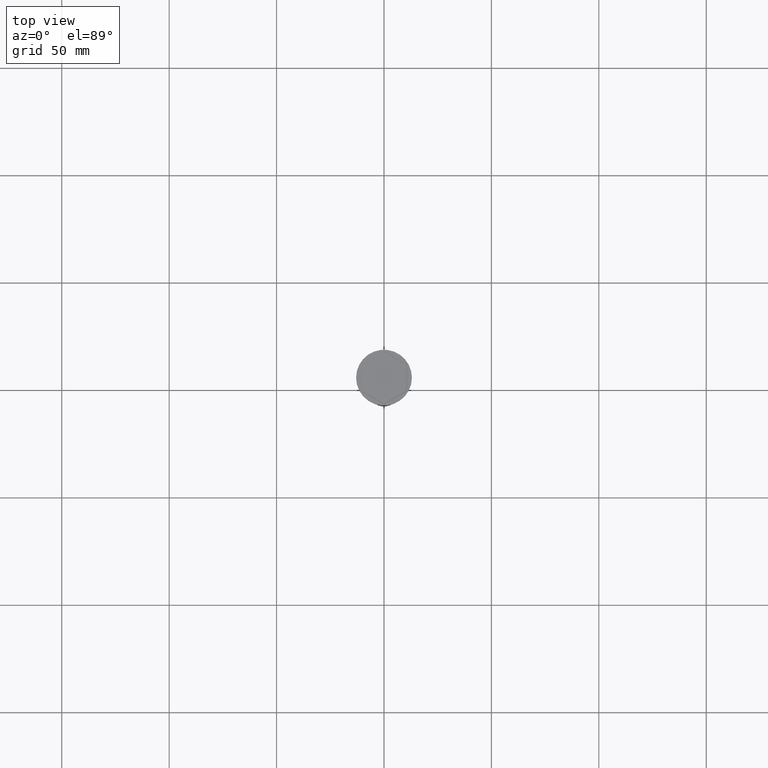
[diagram: clean part render]
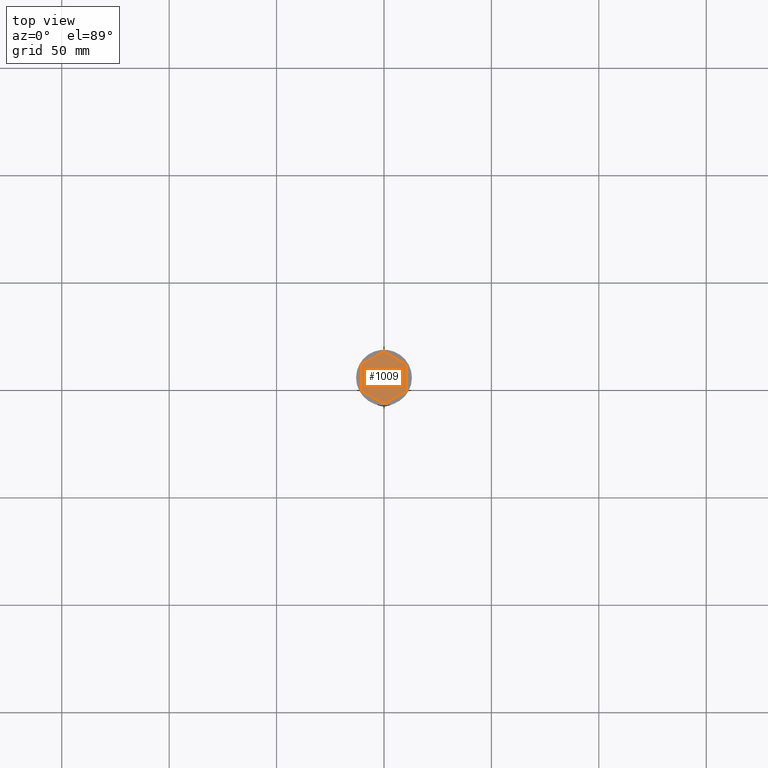
[diagram: same view with one face highlighted and labeled with its STEP entity id]
A machine part, top view. The second image highlights one B-rep face of the part: STEP entity #1009.
In plain terms, the highlighted planar face has unit normal (-0, 0, 1).
Its self-contained STEP definition (entity closure, byte-faithful):
#26 = VERTEX_POINT ( 'NONE', #1527 ) ;
#28 = ORIENTED_EDGE ( 'NONE', *, *, #171, .T. ) ;
#73 = CARTESIAN_POINT ( 'NONE',  ( -5.249999999999997335, 9.093266739736602489, -2.000000000000000000 ) ) ;
#98 = EDGE_CURVE ( 'NONE', #1393, #683, #390, .T. ) ;
#151 = LINE ( 'NONE', #989, #1130 ) ;
#171 = EDGE_CURVE ( 'NONE', #683, #1021, #852, .T. ) ;
#195 = CARTESIAN_POINT ( 'NONE',  ( 0.000000000000000000, 12.12435565298213724, -2.000000000000000000 ) ) ;
#280 = CARTESIAN_POINT ( 'NONE',  ( -10.49999999999999822, -6.062177826491072175, -2.000000000000000000 ) ) ;
#291 = DIRECTION ( 'NONE',  ( 0.8660254037844385966, 0.5000000000000001110, 0.000000000000000000 ) ) ;
#303 = CARTESIAN_POINT ( 'NONE',  ( 0.000000000000000000, 0.000000000000000000, -2.000000000000000000 ) ) ;
#355 = DIRECTION ( 'NONE',  ( 1.000000000000000000, 0.000000000000000000, 0.000000000000000000 ) ) ;
#390 = LINE ( 'NONE', #1478, #1276 ) ;
#401 = CARTESIAN_POINT ( 'NONE',  ( 10.49999999999999822, -6.062177826491069510, -2.000000000000000000 ) ) ;
#535 = CARTESIAN_POINT ( 'NONE',  ( 5.250000000000000000, -9.093266739736604265, -2.000000000000000000 ) ) ;
#541 = DIRECTION ( 'NONE',  ( -0.8660254037844387076, -0.5000000000000001110, 0.000000000000000000 ) ) ;
#587 = VERTEX_POINT ( 'NONE', #755 ) ;
#600 = VERTEX_POINT ( 'NONE', #280 ) ;
#683 = VERTEX_POINT ( 'NONE', #1438 ) ;
#691 = CARTESIAN_POINT ( 'NONE',  ( -5.249999999999998224, -9.093266739736606041, -2.000000000000000000 ) ) ;
#729 = CARTESIAN_POINT ( 'NONE',  ( 5.249999999999996447, 9.093266739736606041, -2.000000000000000000 ) ) ;
#749 = DIRECTION ( 'NONE',  ( 0.000000000000000000, 1.000000000000000000, -0.000000000000000000 ) ) ;
#755 = CARTESIAN_POINT ( 'NONE',  ( -10.49999999999999822, 6.062177826491066845, -2.000000000000000000 ) ) ;
#762 = VECTOR ( 'NONE', #541, 999.9999999999998863 ) ;
#852 = LINE ( 'NONE', #729, #908 ) ;
#887 = VECTOR ( 'NONE', #1184, 1000.000000000000114 ) ;
#908 = VECTOR ( 'NONE', #1225, 1000.000000000000114 ) ;
#914 = FACE_OUTER_BOUND ( 'NONE', #1502, .T. ) ;
#924 = EDGE_CURVE ( 'NONE', #26, #1393, #1549, .T. ) ;
#932 = AXIS2_PLACEMENT_3D ( 'NONE', #303, #1587, #355 ) ;
#944 = EDGE_CURVE ( 'NONE', #600, #26, #1034, .T. ) ;
#954 = EDGE_CURVE ( 'NONE', #1021, #587, #1026, .T. ) ;
#989 = CARTESIAN_POINT ( 'NONE',  ( -10.49999999999999822, 0.000000000000000000, -2.000000000000000000 ) ) ;
#1009 = ADVANCED_FACE ( 'NONE', ( #914 ), #1420, .T. ) ;
#1021 = VERTEX_POINT ( 'NONE', #195 ) ;
#1026 = LINE ( 'NONE', #73, #762 ) ;
#1034 = LINE ( 'NONE', #691, #887 ) ;
#1130 = VECTOR ( 'NONE', #1265, 1000.000000000000000 ) ;
#1184 = DIRECTION ( 'NONE',  ( 0.8660254037844387076, -0.4999999999999998890, 0.000000000000000000 ) ) ;
#1186 = ORIENTED_EDGE ( 'NONE', *, *, #98, .T. ) ;
#1222 = EDGE_CURVE ( 'NONE', #587, #600, #151, .T. ) ;
#1225 = DIRECTION ( 'NONE',  ( -0.8660254037844387076, 0.4999999999999997224, 0.000000000000000000 ) ) ;
#1265 = DIRECTION ( 'NONE',  ( 0.000000000000000000, -1.000000000000000000, 0.000000000000000000 ) ) ;
#1276 = VECTOR ( 'NONE', #749, 1000.000000000000000 ) ;
#1282 = ORIENTED_EDGE ( 'NONE', *, *, #954, .T. ) ;
#1382 = ORIENTED_EDGE ( 'NONE', *, *, #944, .T. ) ;
#1393 = VERTEX_POINT ( 'NONE', #401 ) ;
#1403 = ORIENTED_EDGE ( 'NONE', *, *, #924, .T. ) ;
#1420 = PLANE ( 'NONE',  #932 ) ;
#1438 = CARTESIAN_POINT ( 'NONE',  ( 10.49999999999999822, 6.062177826491071286, -2.000000000000000000 ) ) ;
#1464 = VECTOR ( 'NONE', #291, 1000.000000000000000 ) ;
#1478 = CARTESIAN_POINT ( 'NONE',  ( 10.49999999999999822, 0.000000000000000000, -2.000000000000000000 ) ) ;
#1502 = EDGE_LOOP ( 'NONE', ( #28, #1282, #1529, #1382, #1403, #1186 ) ) ;
#1527 = CARTESIAN_POINT ( 'NONE',  ( 0.000000000000000000, -12.12435565298214080, -2.000000000000000000 ) ) ;
#1529 = ORIENTED_EDGE ( 'NONE', *, *, #1222, .T. ) ;
#1549 = LINE ( 'NONE', #535, #1464 ) ;
#1587 = DIRECTION ( 'NONE',  ( -0.000000000000000000, 0.000000000000000000, 1.000000000000000000 ) ) ;